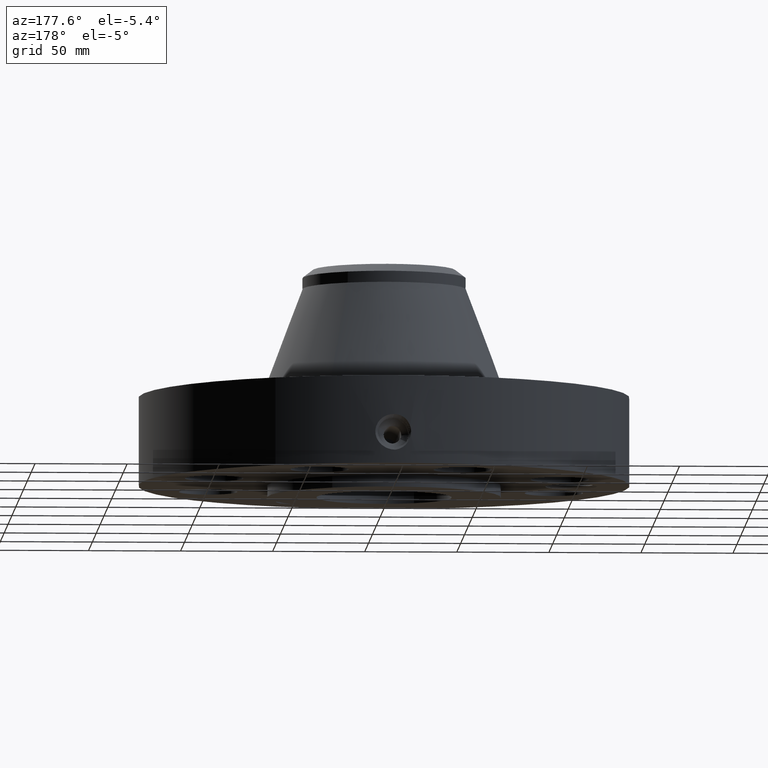
[diagram: clean part render]
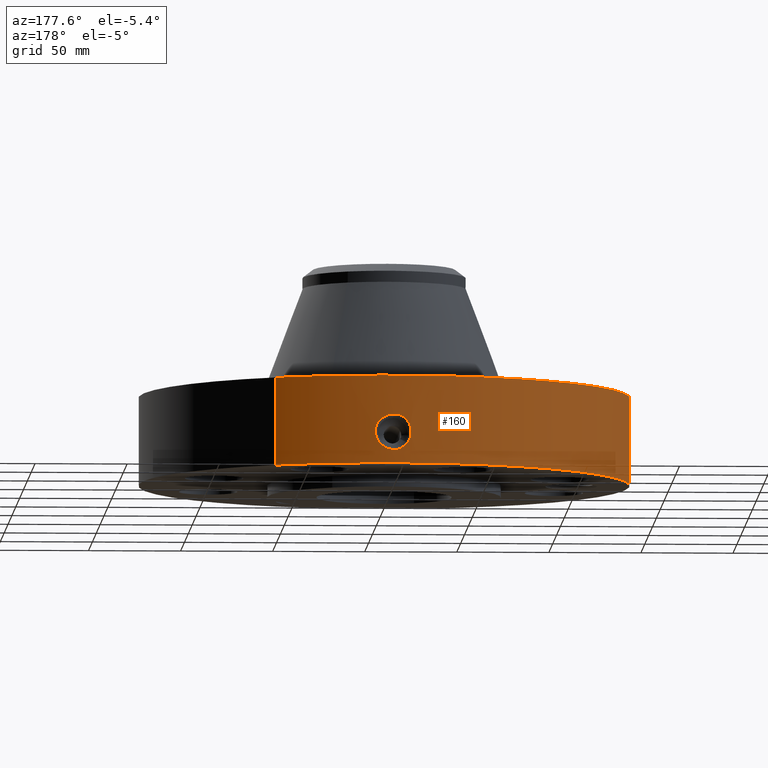
[diagram: same view with one face highlighted and labeled with its STEP entity id]
A machine part, auxiliary view. The second image highlights one B-rep face of the part: STEP entity #160.
In plain terms, the highlighted cylindrical surface (partial cylindrical patch) has radius 133.35 mm, axis along (0, 0, -1).
Its self-contained STEP definition (entity closure, byte-faithful):
#38=AXIS2_PLACEMENT_3D('Cylinder Axis2P3D',#35,#36,#37) ;
#42=AXIS2_PLACEMENT_3D('Circle Axis2P3D',#40,#41,$) ;
#58=AXIS2_PLACEMENT_3D('Circle Axis2P3D',#56,#57,$) ;
#35=CARTESIAN_POINT('Axis2P3D Location',(0.,0.,2.43500000001)) ;
#40=CARTESIAN_POINT('Axis2P3D Location',(0.,0.,0.250000000001)) ;
#44=CARTESIAN_POINT('Vertex',(-2.51698407768,-4.60730844994,0.250000000001)) ;
#46=CARTESIAN_POINT('Vertex',(2.51698407768,4.60730844994,0.250000000001)) ;
#49=CARTESIAN_POINT('Line Origine',(-2.51698407768,-4.60730844994,1.19)) ;
#53=CARTESIAN_POINT('Vertex',(-2.51698407768,-4.60730844994,2.13000000001)) ;
#56=CARTESIAN_POINT('Axis2P3D Location',(0.,0.,2.13000000001)) ;
#60=CARTESIAN_POINT('Vertex',(2.51698407768,4.60730844994,2.13000000001)) ;
#63=CARTESIAN_POINT('Line Origine',(2.51698407768,4.60730844994,1.19)) ;
#75=CARTESIAN_POINT('Control Point',(-0.0642548901496,5.24960677664,1.28822813093)) ;
#76=CARTESIAN_POINT('Control Point',(-0.0433119165037,5.24986311745,1.29210073242)) ;
#77=CARTESIAN_POINT('Control Point',(-0.0220165854869,5.24999704255,1.29407525178)) ;
#78=CARTESIAN_POINT('Control Point',(-0.000716899922846,5.24999995107,1.29411849726)) ;
#79=CARTESIAN_POINT('Vertex',(-0.0642326860734,5.24960731882,1.28823254207)) ;
#81=CARTESIAN_POINT('Vertex',(-0.00071669753756,5.2499999511,1.29411850753)) ;
#85=CARTESIAN_POINT('Control Point',(-0.0642325648551,5.24960704985,1.28823191245)) ;
#86=CARTESIAN_POINT('Control Point',(-0.101366658571,5.24915268859,1.28265408666)) ;
#87=CARTESIAN_POINT('Control Point',(-0.137571209264,5.24830196282,1.27041645814)) ;
#88=CARTESIAN_POINT('Control Point',(-0.17070982714,5.2472238522,1.25251500554)) ;
#89=CARTESIAN_POINT('Vertex',(-0.17070982714,5.2472238522,1.25251500554)) ;
#93=CARTESIAN_POINT('Control Point',(-0.029224179225,5.24991866104,0.531058913899)) ;
#94=CARTESIAN_POINT('Control Point',(-0.0757986145832,5.24965939995,0.537030414222)) ;
#95=CARTESIAN_POINT('Control Point',(-0.121210150468,5.24889011729,0.550520744811)) ;
#96=CARTESIAN_POINT('Control Point',(-0.16372180224,5.24767092096,0.571165603564)) ;
#97=CARTESIAN_POINT('Control Point',(-0.257613173321,5.24410928851,0.636326101916)) ;
#98=CARTESIAN_POINT('Control Point',(-0.321981420709,5.24027286201,0.72990456847)) ;
#99=CARTESIAN_POINT('Control Point',(-0.347591831206,5.23849692535,0.791510173826)) ;
#100=CARTESIAN_POINT('Control Point',(-0.367018694996,5.23715940402,0.88879839234)) ;
#101=CARTESIAN_POINT('Control Point',(-0.357452253228,5.23781804436,0.985206805157)) ;
#102=CARTESIAN_POINT('Control Point',(-0.350906070961,5.23826917247,1.01733145365)) ;
#103=CARTESIAN_POINT('Control Point',(-0.326667842426,5.23988640252,1.09444810264)) ;
#104=CARTESIAN_POINT('Control Point',(-0.283222018889,5.24246131211,1.1630522169)) ;
#105=CARTESIAN_POINT('Control Point',(-0.250890376052,5.24419241091,1.19949220042)) ;
#106=CARTESIAN_POINT('Control Point',(-0.212821081837,5.24585383156,1.22976654196)) ;
#107=CARTESIAN_POINT('Control Point',(-0.17070982714,5.2472238522,1.25251500554)) ;
#108=CARTESIAN_POINT('Vertex',(-0.029224179225,5.24991866104,0.531058913899)) ;
#112=CARTESIAN_POINT('Control Point',(-0.029224179225,5.24991866104,0.531058913899)) ;
#113=CARTESIAN_POINT('Control Point',(-0.0194758727198,5.24997292593,0.53085645789)) ;
#114=CARTESIAN_POINT('Control Point',(-0.00972559835264,5.25000000508,0.530961817463)) ;
#115=CARTESIAN_POINT('Control Point',(2.72878353289E-006,5.25000000002,0.531374667805)) ;
#116=CARTESIAN_POINT('Vertex',(2.72878353757E-006,5.25000000002,0.531374667805)) ;
#120=CARTESIAN_POINT('Control Point',(0.194329401017,5.24640220381,0.584290639301)) ;
#121=CARTESIAN_POINT('Control Point',(0.134784125881,5.24860779103,0.552218166306)) ;
#122=CARTESIAN_POINT('Control Point',(0.0678213827943,5.24999996477,0.534252755244)) ;
#123=CARTESIAN_POINT('Control Point',(2.72878353289E-006,5.25000000002,0.531374667805)) ;
#124=CARTESIAN_POINT('Vertex',(0.194329401017,5.24640220381,0.584290639301)) ;
#128=CARTESIAN_POINT('Control Point',(0.194329401017,5.24640220381,0.584290639301)) ;
#129=CARTESIAN_POINT('Control Point',(0.245491765184,5.24450712387,0.6118478813)) ;
#130=CARTESIAN_POINT('Control Point',(0.292059527039,5.24215771215,0.647986187494)) ;
#131=CARTESIAN_POINT('Control Point',(0.332013433494,5.23964260674,0.692108479062)) ;
#132=CARTESIAN_POINT('Control Point',(0.391712510196,5.23546450048,0.790666546861)) ;
#133=CARTESIAN_POINT('Control Point',(0.411028571063,5.23387653244,0.90397717994)) ;
#134=CARTESIAN_POINT('Control Point',(0.409563636762,5.23399901225,0.960037257834)) ;
#135=CARTESIAN_POINT('Control Point',(0.384642365221,5.23601093393,1.0709734692)) ;
#136=CARTESIAN_POINT('Control Point',(0.321410488647,5.24032086589,1.16370403184)) ;
#137=CARTESIAN_POINT('Control Point',(0.280632350228,5.24278573324,1.20396112118)) ;
#138=CARTESIAN_POINT('Control Point',(0.201889890921,5.24656145134,1.25790111905)) ;
#139=CARTESIAN_POINT('Control Point',(0.112894673332,5.24898233293,1.28620972517)) ;
#140=CARTESIAN_POINT('Control Point',(0.0753579945784,5.24966520065,1.29335685785)) ;
#141=CARTESIAN_POINT('Control Point',(0.0374936902395,5.25000018475,1.29599233588)) ;
#142=CARTESIAN_POINT('Control Point',(-2.58579355177E-005,5.24999999996,1.29415298436)) ;
#143=CARTESIAN_POINT('Vertex',(-2.58579355209E-005,5.24999999996,1.29415298436)) ;
#147=CARTESIAN_POINT('Control Point',(-0.0007166975262,5.2499999511,1.29411850751)) ;
#148=CARTESIAN_POINT('Control Point',(-0.000371301062621,5.24999999825,1.29413604943)) ;
#149=CARTESIAN_POINT('Control Point',(-2.58579427891E-005,5.24999999996,1.29415298436)) ;
#36=DIRECTION('Axis2P3D Direction',(0.,0.,-0.0393700787402)) ;
#37=DIRECTION('Axis2P3D XDirection',(0.0188750212049,0.0345504945626,0.)) ;
#41=DIRECTION('Axis2P3D Direction',(0.,0.,-0.0393700787402)) ;
#50=DIRECTION('Vector Direction',(0.,0.,-0.0393700787402)) ;
#57=DIRECTION('Axis2P3D Direction',(0.,0.,-0.0393700787402)) ;
#64=DIRECTION('Vector Direction',(0.,0.,-0.0393700787402)) ;
#51=VECTOR('Line Direction',#50,0.0393700787402) ;
#65=VECTOR('Line Direction',#64,0.0393700787402) ;
#69=ORIENTED_EDGE('',*,*,#48,.F.) ;
#70=ORIENTED_EDGE('',*,*,#55,.T.) ;
#71=ORIENTED_EDGE('',*,*,#62,.T.) ;
#72=ORIENTED_EDGE('',*,*,#67,.F.) ;
#152=ORIENTED_EDGE('',*,*,#83,.F.) ;
#153=ORIENTED_EDGE('',*,*,#91,.T.) ;
#154=ORIENTED_EDGE('',*,*,#110,.F.) ;
#155=ORIENTED_EDGE('',*,*,#118,.T.) ;
#156=ORIENTED_EDGE('',*,*,#126,.F.) ;
#157=ORIENTED_EDGE('',*,*,#145,.T.) ;
#158=ORIENTED_EDGE('',*,*,#150,.F.) ;
#159=FACE_BOUND('',#151,.T.) ;
#160=ADVANCED_FACE('PartBody',(#73,#159),#39,.T.) ;
#74=B_SPLINE_CURVE_WITH_KNOTS('',3,(#75,#76,#77,#78),.UNSPECIFIED.,.F.,.U.,(4,4),(4.15886578186,6.52187526629),.UNSPECIFIED.) ;
#84=B_SPLINE_CURVE_WITH_KNOTS('',3,(#85,#86,#87,#88),.UNSPECIFIED.,.F.,.U.,(4,4),(0.,4.21917109593),.UNSPECIFIED.) ;
#92=B_SPLINE_CURVE_WITH_KNOTS('',5,(#93,#94,#95,#96,#97,#98,#99,#100,#101,#102,#103,#104,#105,#106,#107),.UNSPECIFIED.,.F.,.U.,(6,3,3,3,6),(0.,8.16106326792,20.0085234318,26.0732239772,35.0091523424),.UNSPECIFIED.) ;
#111=B_SPLINE_CURVE_WITH_KNOTS('',3,(#112,#113,#114,#115),.UNSPECIFIED.,.F.,.U.,(4,4),(0.,1.01672393967),.UNSPECIFIED.) ;
#119=B_SPLINE_CURVE_WITH_KNOTS('',3,(#120,#121,#122,#123),.UNSPECIFIED.,.F.,.U.,(4,4),(0.,7.08784236669),.UNSPECIFIED.) ;
#127=B_SPLINE_CURVE_WITH_KNOTS('',5,(#128,#129,#130,#131,#132,#133,#134,#135,#136,#137,#138,#139,#140,#141,#142),.UNSPECIFIED.,.F.,.U.,(6,3,3,3,6),(0.,10.1500013261,19.6791311547,29.7545946787,36.7677751342),.UNSPECIFIED.) ;
#146=B_SPLINE_CURVE_WITH_KNOTS('',2,(#147,#148,#149),.UNSPECIFIED.,.F.,.U.,(3,3),(1.08990104316,1.11572923357),.UNSPECIFIED.) ;
#43=CIRCLE('generated circle',#42,5.25000000002) ;
#59=CIRCLE('generated circle',#58,5.25000000002) ;
#39=CYLINDRICAL_SURFACE('generated cylinder',#38,5.25000000002) ;
#48=EDGE_CURVE('',#45,#47,#43,.T.) ;
#55=EDGE_CURVE('',#45,#54,#52,.F.) ;
#62=EDGE_CURVE('',#54,#61,#59,.T.) ;
#67=EDGE_CURVE('',#47,#61,#66,.F.) ;
#83=EDGE_CURVE('',#80,#82,#74,.T.) ;
#91=EDGE_CURVE('',#80,#90,#84,.T.) ;
#110=EDGE_CURVE('',#109,#90,#92,.T.) ;
#118=EDGE_CURVE('',#109,#117,#111,.T.) ;
#126=EDGE_CURVE('',#125,#117,#119,.T.) ;
#145=EDGE_CURVE('',#125,#144,#127,.T.) ;
#150=EDGE_CURVE('',#82,#144,#146,.T.) ;
#68=EDGE_LOOP('',(#69,#70,#71,#72)) ;
#151=EDGE_LOOP('',(#152,#153,#154,#155,#156,#157,#158)) ;
#73=FACE_OUTER_BOUND('',#68,.T.) ;
#52=LINE('Line',#49,#51) ;
#66=LINE('Line',#63,#65) ;
#45=VERTEX_POINT('',#44) ;
#47=VERTEX_POINT('',#46) ;
#54=VERTEX_POINT('',#53) ;
#61=VERTEX_POINT('',#60) ;
#80=VERTEX_POINT('',#79) ;
#82=VERTEX_POINT('',#81) ;
#90=VERTEX_POINT('',#89) ;
#109=VERTEX_POINT('',#108) ;
#117=VERTEX_POINT('',#116) ;
#125=VERTEX_POINT('',#124) ;
#144=VERTEX_POINT('',#143) ;